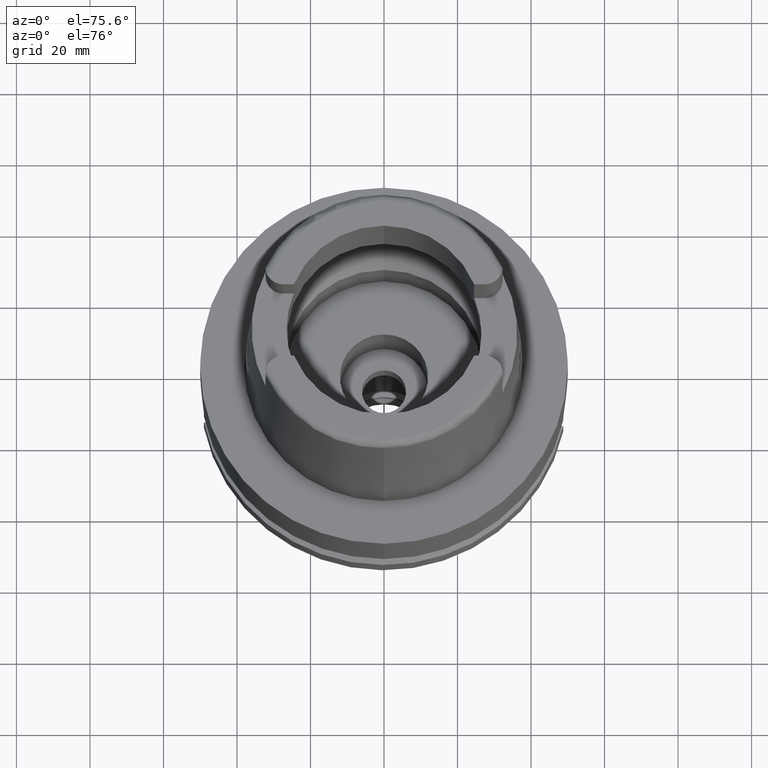
[diagram: clean part render]
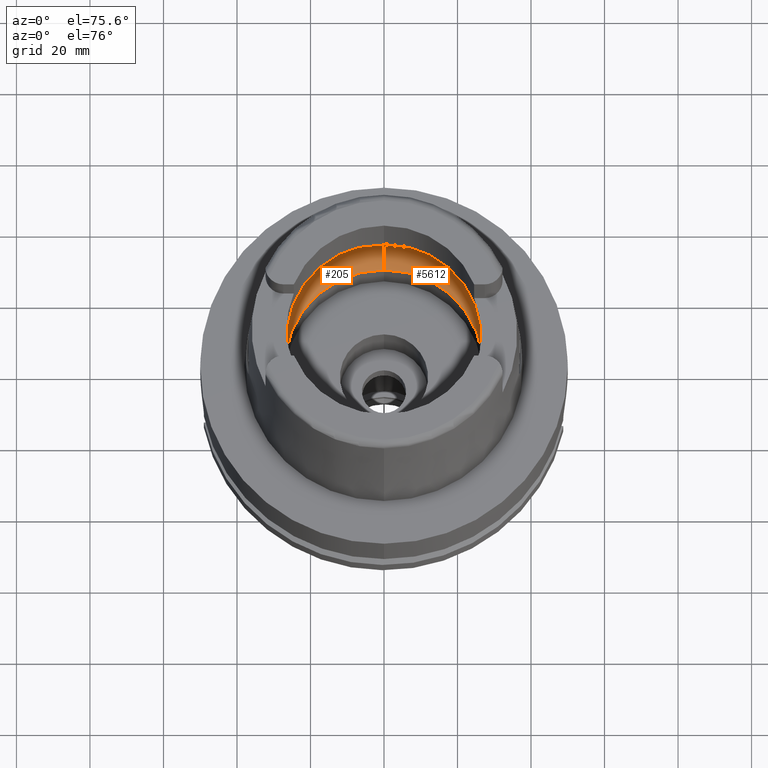
[diagram: same view with one multi-face feature highlighted, each face labeled with its STEP entity id]
A machine part, auxiliary view. The highlighted faces form ONE feature: a constant-radius fillet chain: 2 tangent blend faces with common blend radius 12 mm. The faces share edges in the B-rep.
Their STEP definitions:
[1] entity #5612 (Torus):
#146 = EDGE_CURVE ( 'NONE', #237, #2170, #1370, .T. ) ;
#194 = DIRECTION ( 'NONE',  ( 0.0000000000000000000, 1.000000000000000000, 0.0000000000000000000 ) ) ;
#237 = VERTEX_POINT ( 'NONE', #2188 ) ;
#304 = CARTESIAN_POINT ( 'NONE',  ( 0.0000000000000000000, 31.50000000000000000, 9.496624327025999790 ) ) ;
#484 = TOROIDAL_SURFACE ( 'NONE', #1993, 19.50000000000000000, 12.00000000000000000 ) ;
#717 = ORIENTED_EDGE ( 'NONE', *, *, #3877, .F. ) ;
#721 = CIRCLE ( 'NONE', #2229, 11.99999999999999822 ) ;
#753 = AXIS2_PLACEMENT_3D ( 'NONE', #4913, #4450, #5779 ) ;
#780 = VERTEX_POINT ( 'NONE', #6050 ) ;
#792 = EDGE_CURVE ( 'NONE', #3549, #1497, #721, .T. ) ;
#807 = ORIENTED_EDGE ( 'NONE', *, *, #1676, .F. ) ;
#839 = VERTEX_POINT ( 'NONE', #2709 ) ;
#1243 = AXIS2_PLACEMENT_3D ( 'NONE', #5220, #2410, #2348 ) ;
#1309 = DIRECTION ( 'NONE',  ( 0.0000000000000000000, 0.0000000000000000000, 1.000000000000000000 ) ) ;
#1370 = CIRCLE ( 'NONE', #753, 11.99999999999999822 ) ;
#1373 = DIRECTION ( 'NONE',  ( 0.0000000000000000000, 0.0000000000000000000, -1.000000000000000000 ) ) ;
#1497 = VERTEX_POINT ( 'NONE', #304 ) ;
#1551 = AXIS2_PLACEMENT_3D ( 'NONE', #3797, #1373, #2341 ) ;
#1568 = B_SPLINE_CURVE_WITH_KNOTS ( 'NONE', 3,
 ( #5455, #2774, #2644, #4040 ),
 .UNSPECIFIED., .F., .F.,
 ( 4, 4 ),
 ( 0.0000000000000000000, 1.000000000000000000 ),
 .UNSPECIFIED. ) ;
#1676 = EDGE_CURVE ( 'NONE', #237, #3549, #5682, .T. ) ;
#1971 = EDGE_CURVE ( 'NONE', #780, #2985, #1568, .T. ) ;
#1993 = AXIS2_PLACEMENT_3D ( 'NONE', #2165, #2572, #194 ) ;
#1997 = ORIENTED_EDGE ( 'NONE', *, *, #1971, .F. ) ;
#2143 = CARTESIAN_POINT ( 'NONE',  ( 0.0000000000000000000, 19.50000000000000000, 9.496624327025999790 ) ) ;
#2149 = CIRCLE ( 'NONE', #1551, 31.49999999999998934 ) ;
#2165 = CARTESIAN_POINT ( 'NONE',  ( 0.0000000000000000000, 0.0000000000000000000, 9.496624327025999790 ) ) ;
#2170 = VERTEX_POINT ( 'NONE', #5269 ) ;
#2188 = CARTESIAN_POINT ( 'NONE',  ( 0.0000000000000000000, -26.89999999999999858, 0.04993178413029000090 ) ) ;
#2229 = AXIS2_PLACEMENT_3D ( 'NONE', #2143, #4038, #4984 ) ;
#2341 = DIRECTION ( 'NONE',  ( 0.9971171061384295209, -0.07587803796965221503, 0.0000000000000000000 ) ) ;
#2348 = DIRECTION ( 'NONE',  ( 0.0000000000000000000, 1.000000000000000000, 0.0000000000000000000 ) ) ;
#2410 = DIRECTION ( 'NONE',  ( 0.0000000000000000000, 0.0000000000000000000, -1.000000000000000000 ) ) ;
#2424 = AXIS2_PLACEMENT_3D ( 'NONE', #5557, #1309, #2754 ) ;
#2448 = EDGE_CURVE ( 'NONE', #839, #780, #4310, .T. ) ;
#2572 = DIRECTION ( 'NONE',  ( 0.0000000000000000000, 0.0000000000000000000, 1.000000000000000000 ) ) ;
#2644 = CARTESIAN_POINT ( 'NONE',  ( 31.46287568614665986, -1.684656699965325632, 9.190219625007294724 ) ) ;
#2709 = CARTESIAN_POINT ( 'NONE',  ( 31.40918884336000616, 2.390158196043999705, 9.496624327025999790 ) ) ;
#2754 = DIRECTION ( 'NONE',  ( 0.0000000000000000000, -1.000000000000000000, 0.0000000000000000000 ) ) ;
#2774 = CARTESIAN_POINT ( 'NONE',  ( 31.48971910753999026, -0.8697454017312684638, 8.999999999999998224 ) ) ;
#2985 = VERTEX_POINT ( 'NONE', #4739 ) ;
#2990 = CARTESIAN_POINT ( 'NONE',  ( 0.0000000000000000000, 26.89999999999999858, 0.04993178413029000090 ) ) ;
#3035 = CIRCLE ( 'NONE', #1243, 31.50000000000000000 ) ;
#3122 = EDGE_LOOP ( 'NONE', ( #4663, #6124, #5099, #807, #5431, #717, #1997 ) ) ;
#3259 = CARTESIAN_POINT ( 'NONE',  ( 31.48971910754000447, 0.0000000000000000000, 9.000000000000000000 ) ) ;
#3333 = EDGE_CURVE ( 'NONE', #1497, #839, #3035, .T. ) ;
#3549 = VERTEX_POINT ( 'NONE', #2990 ) ;
#3662 = CARTESIAN_POINT ( 'NONE',  ( 31.46287568614665986, 1.684656700008886121, 9.190219625026216477 ) ) ;
#3797 = CARTESIAN_POINT ( 'NONE',  ( 0.0000000000000000000, 0.0000000000000000000, 9.496624327025999790 ) ) ;
#3877 = EDGE_CURVE ( 'NONE', #2985, #2170, #2149, .T. ) ;
#4038 = DIRECTION ( 'NONE',  ( 1.000000000000000000, 0.0000000000000000000, 0.0000000000000000000 ) ) ;
#4040 = CARTESIAN_POINT ( 'NONE',  ( 31.40918884336000616, -2.390158196043999705, 9.496624327025999790 ) ) ;
#4310 = B_SPLINE_CURVE_WITH_KNOTS ( 'NONE', 3,
 ( #4717, #3662, #5178, #3259 ),
 .UNSPECIFIED., .F., .F.,
 ( 4, 4 ),
 ( 0.0000000000000000000, 1.000000000000000000 ),
 .UNSPECIFIED. ) ;
#4450 = DIRECTION ( 'NONE',  ( -1.000000000000000000, 0.0000000000000000000, 0.0000000000000000000 ) ) ;
#4663 = ORIENTED_EDGE ( 'NONE', *, *, #2448, .F. ) ;
#4717 = CARTESIAN_POINT ( 'NONE',  ( 31.40918884336000616, 2.390158196043999705, 9.496624327025999790 ) ) ;
#4739 = CARTESIAN_POINT ( 'NONE',  ( 31.40918884336000616, -2.390158196043999705, 9.496624327025999790 ) ) ;
#4913 = CARTESIAN_POINT ( 'NONE',  ( 0.0000000000000000000, -19.50000000000000000, 9.496624327025999790 ) ) ;
#4945 = FACE_OUTER_BOUND ( 'NONE', #3122, .T. ) ;
#4984 = DIRECTION ( 'NONE',  ( 0.0000000000000000000, 0.6166666666667049990, -0.7872243785746061429 ) ) ;
#5099 = ORIENTED_EDGE ( 'NONE', *, *, #792, .F. ) ;
#5178 = CARTESIAN_POINT ( 'NONE',  ( 31.48971910753999026, 0.8697454017787721314, 9.000000000000001776 ) ) ;
#5220 = CARTESIAN_POINT ( 'NONE',  ( 0.0000000000000000000, 0.0000000000000000000, 9.496624327025999790 ) ) ;
#5269 = CARTESIAN_POINT ( 'NONE',  ( 0.0000000000000000000, -31.50000000000000000, 9.496624327025999790 ) ) ;
#5431 = ORIENTED_EDGE ( 'NONE', *, *, #146, .T. ) ;
#5455 = CARTESIAN_POINT ( 'NONE',  ( 31.48971910754000447, 0.0000000000000000000, 9.000000000000000000 ) ) ;
#5557 = CARTESIAN_POINT ( 'NONE',  ( 0.0000000000000000000, 0.0000000000000000000, 0.04993178413029000090 ) ) ;
#5612 = ADVANCED_FACE ( 'NONE', ( #4945 ), #484, .F. ) ;
#5682 = CIRCLE ( 'NONE', #2424, 26.89999999999999858 ) ;
#5779 = DIRECTION ( 'NONE',  ( 0.0000000000000000000, -0.6166666666667049990, -0.7872243785746061429 ) ) ;
#6050 = CARTESIAN_POINT ( 'NONE',  ( 31.48971910754000447, 0.0000000000000000000, 9.000000000000000000 ) ) ;
#6124 = ORIENTED_EDGE ( 'NONE', *, *, #3333, .F. ) ;
[2] entity #205 (Torus):
#84 = VERTEX_POINT ( 'NONE', #278 ) ;
#146 = EDGE_CURVE ( 'NONE', #237, #2170, #1370, .T. ) ;
#205 = ADVANCED_FACE ( 'NONE', ( #2507 ), #2661, .F. ) ;
#220 = AXIS2_PLACEMENT_3D ( 'NONE', #3145, #5029, #4206 ) ;
#235 = CARTESIAN_POINT ( 'NONE',  ( -31.40918884336000616, 2.390158196043999705, 9.496624327025999790 ) ) ;
#237 = VERTEX_POINT ( 'NONE', #2188 ) ;
#278 = CARTESIAN_POINT ( 'NONE',  ( -31.40918884336000616, 2.390158196043999705, 9.496624327025999790 ) ) ;
#304 = CARTESIAN_POINT ( 'NONE',  ( 0.0000000000000000000, 31.50000000000000000, 9.496624327025999790 ) ) ;
#363 = CARTESIAN_POINT ( 'NONE',  ( -31.48971910754000447, 0.0000000000000000000, 9.000000000000000000 ) ) ;
#405 = VERTEX_POINT ( 'NONE', #3526 ) ;
#432 = ORIENTED_EDGE ( 'NONE', *, *, #3805, .F. ) ;
#721 = CIRCLE ( 'NONE', #2229, 11.99999999999999822 ) ;
#753 = AXIS2_PLACEMENT_3D ( 'NONE', #4913, #4450, #5779 ) ;
#792 = EDGE_CURVE ( 'NONE', #3549, #1497, #721, .T. ) ;
#847 = ORIENTED_EDGE ( 'NONE', *, *, #5228, .F. ) ;
#1001 = ORIENTED_EDGE ( 'NONE', *, *, #146, .F. ) ;
#1282 = CIRCLE ( 'NONE', #3667, 31.49999999999998934 ) ;
#1370 = CIRCLE ( 'NONE', #753, 11.99999999999999822 ) ;
#1497 = VERTEX_POINT ( 'NONE', #304 ) ;
#1500 = DIRECTION ( 'NONE',  ( 0.0000000000000000000, 0.0000000000000000000, 1.000000000000000000 ) ) ;
#1590 = CIRCLE ( 'NONE', #4369, 31.50000000000000000 ) ;
#1631 = EDGE_CURVE ( 'NONE', #3549, #237, #5085, .T. ) ;
#1725 = CARTESIAN_POINT ( 'NONE',  ( -31.48971910754000447, 0.0000000000000000000, 9.000000000000000000 ) ) ;
#1767 = CARTESIAN_POINT ( 'NONE',  ( 0.0000000000000000000, 0.0000000000000000000, 9.496624327025999790 ) ) ;
#1792 = CARTESIAN_POINT ( 'NONE',  ( -31.46287568614665986, -1.684656700028137832, 9.190219625034576012 ) ) ;
#1799 = DIRECTION ( 'NONE',  ( 0.0000000000000000000, 0.0000000000000000000, -1.000000000000000000 ) ) ;
#2143 = CARTESIAN_POINT ( 'NONE',  ( 0.0000000000000000000, 19.50000000000000000, 9.496624327025999790 ) ) ;
#2170 = VERTEX_POINT ( 'NONE', #5269 ) ;
#2188 = CARTESIAN_POINT ( 'NONE',  ( 0.0000000000000000000, -26.89999999999999858, 0.04993178413029000090 ) ) ;
#2229 = AXIS2_PLACEMENT_3D ( 'NONE', #2143, #4038, #4984 ) ;
#2443 = ORIENTED_EDGE ( 'NONE', *, *, #6074, .F. ) ;
#2507 = FACE_OUTER_BOUND ( 'NONE', #3615, .T. ) ;
#2562 = ORIENTED_EDGE ( 'NONE', *, *, #1631, .F. ) ;
#2661 = TOROIDAL_SURFACE ( 'NONE', #3648, 19.50000000000000000, 12.00000000000000000 ) ;
#2664 = DIRECTION ( 'NONE',  ( 0.0000000000000000000, -1.000000000000000000, 0.0000000000000000000 ) ) ;
#2990 = CARTESIAN_POINT ( 'NONE',  ( 0.0000000000000000000, 26.89999999999999858, 0.04993178413029000090 ) ) ;
#3145 = CARTESIAN_POINT ( 'NONE',  ( 0.0000000000000000000, 0.0000000000000000000, 0.04993178413029000090 ) ) ;
#3334 = ORIENTED_EDGE ( 'NONE', *, *, #5733, .F. ) ;
#3526 = CARTESIAN_POINT ( 'NONE',  ( -31.48971910754000447, 0.0000000000000000000, 9.000000000000000000 ) ) ;
#3549 = VERTEX_POINT ( 'NONE', #2990 ) ;
#3564 = DIRECTION ( 'NONE',  ( 0.0000000000000000000, 0.0000000000000000000, -1.000000000000000000 ) ) ;
#3615 = EDGE_LOOP ( 'NONE', ( #3334, #1001, #2562, #4788, #847, #432, #2443 ) ) ;
#3648 = AXIS2_PLACEMENT_3D ( 'NONE', #5841, #1500, #3989 ) ;
#3667 = AXIS2_PLACEMENT_3D ( 'NONE', #5946, #3564, #4034 ) ;
#3805 = EDGE_CURVE ( 'NONE', #405, #84, #5132, .T. ) ;
#3989 = DIRECTION ( 'NONE',  ( 0.0000000000000000000, 1.000000000000000000, 0.0000000000000000000 ) ) ;
#4034 = DIRECTION ( 'NONE',  ( -0.9971171061384295209, 0.07587803796965221503, 0.0000000000000000000 ) ) ;
#4038 = DIRECTION ( 'NONE',  ( 1.000000000000000000, 0.0000000000000000000, 0.0000000000000000000 ) ) ;
#4206 = DIRECTION ( 'NONE',  ( 0.0000000000000000000, 1.000000000000000000, 0.0000000000000000000 ) ) ;
#4369 = AXIS2_PLACEMENT_3D ( 'NONE', #1767, #1799, #2664 ) ;
#4450 = DIRECTION ( 'NONE',  ( -1.000000000000000000, 0.0000000000000000000, 0.0000000000000000000 ) ) ;
#4788 = ORIENTED_EDGE ( 'NONE', *, *, #792, .T. ) ;
#4840 = CARTESIAN_POINT ( 'NONE',  ( -31.40918884336000616, -2.390158196043999705, 9.496624327025999790 ) ) ;
#4913 = CARTESIAN_POINT ( 'NONE',  ( 0.0000000000000000000, -19.50000000000000000, 9.496624327025999790 ) ) ;
#4984 = DIRECTION ( 'NONE',  ( 0.0000000000000000000, 0.6166666666667049990, -0.7872243785746061429 ) ) ;
#5029 = DIRECTION ( 'NONE',  ( 0.0000000000000000000, 0.0000000000000000000, 1.000000000000000000 ) ) ;
#5085 = CIRCLE ( 'NONE', #220, 26.89999999999999858 ) ;
#5121 = CARTESIAN_POINT ( 'NONE',  ( -31.46287568614665986, 1.684656699916923683, 9.190219624986275093 ) ) ;
#5132 = B_SPLINE_CURVE_WITH_KNOTS ( 'NONE', 3,
 ( #363, #5583, #5121, #235 ),
 .UNSPECIFIED., .F., .F.,
 ( 4, 4 ),
 ( 0.0000000000000000000, 1.000000000000000000 ),
 .UNSPECIFIED. ) ;
#5172 = VERTEX_POINT ( 'NONE', #4840 ) ;
#5228 = EDGE_CURVE ( 'NONE', #84, #1497, #1282, .T. ) ;
#5269 = CARTESIAN_POINT ( 'NONE',  ( 0.0000000000000000000, -31.50000000000000000, 9.496624327025999790 ) ) ;
#5500 = B_SPLINE_CURVE_WITH_KNOTS ( 'NONE', 3,
 ( #6063, #1792, #5995, #1725 ),
 .UNSPECIFIED., .F., .F.,
 ( 4, 4 ),
 ( 0.0000000000000000000, 1.000000000000000000 ),
 .UNSPECIFIED. ) ;
#5583 = CARTESIAN_POINT ( 'NONE',  ( -31.48971910754000447, 0.8697454016785111097, 9.000000000000001776 ) ) ;
#5733 = EDGE_CURVE ( 'NONE', #2170, #5172, #1590, .T. ) ;
#5779 = DIRECTION ( 'NONE',  ( 0.0000000000000000000, -0.6166666666667049990, -0.7872243785746061429 ) ) ;
#5841 = CARTESIAN_POINT ( 'NONE',  ( 0.0000000000000000000, 0.0000000000000000000, 9.496624327025999790 ) ) ;
#5946 = CARTESIAN_POINT ( 'NONE',  ( 0.0000000000000000000, 0.0000000000000000000, 9.496624327025999790 ) ) ;
#5995 = CARTESIAN_POINT ( 'NONE',  ( -31.48971910754000447, -0.8697454017997489073, 8.999999999999998224 ) ) ;
#6063 = CARTESIAN_POINT ( 'NONE',  ( -31.40918884336000616, -2.390158196043999705, 9.496624327025999790 ) ) ;
#6074 = EDGE_CURVE ( 'NONE', #5172, #405, #5500, .T. ) ;